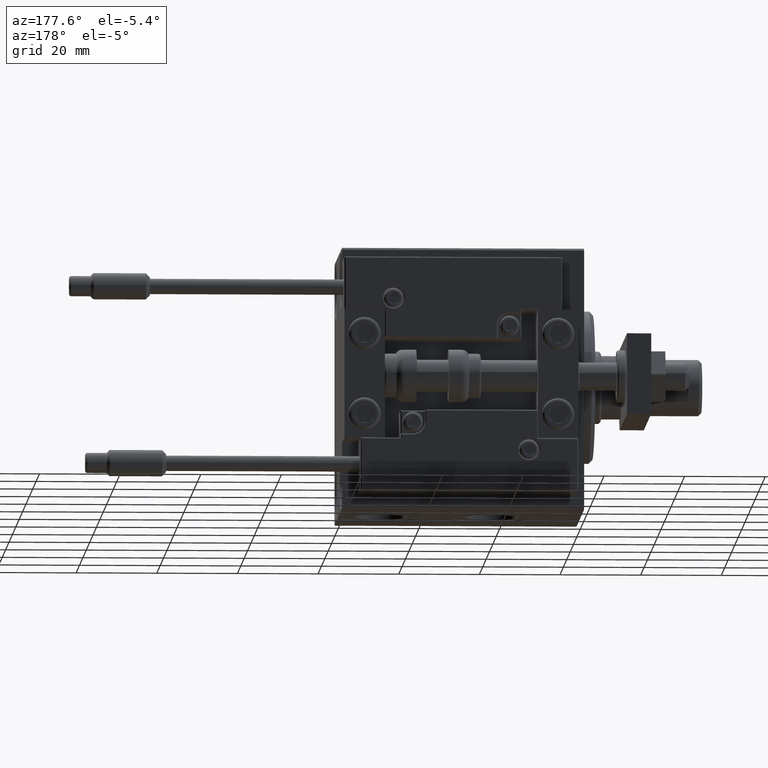
[diagram: clean part render]
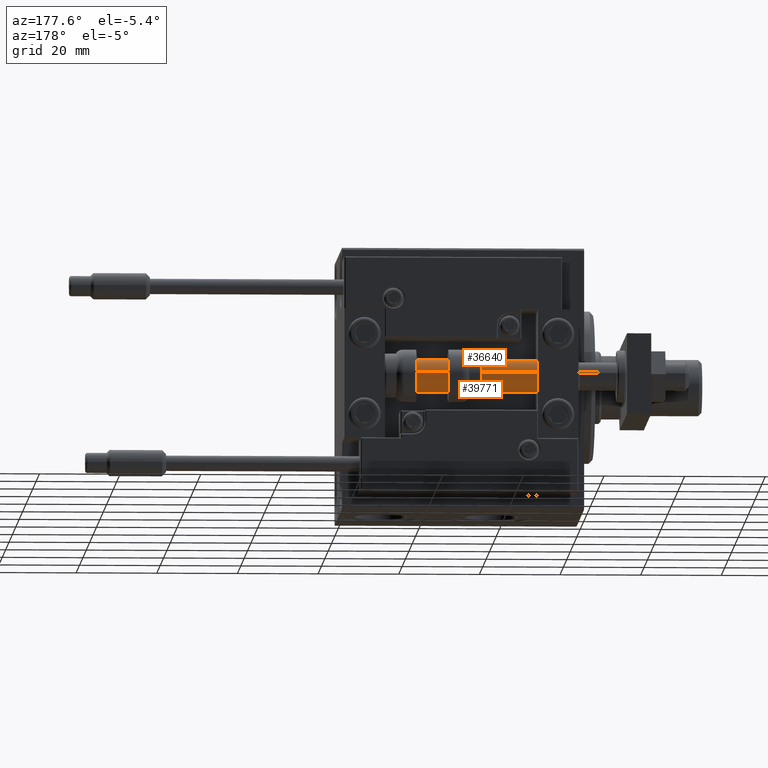
[diagram: same view with one multi-face feature highlighted, each face labeled with its STEP entity id]
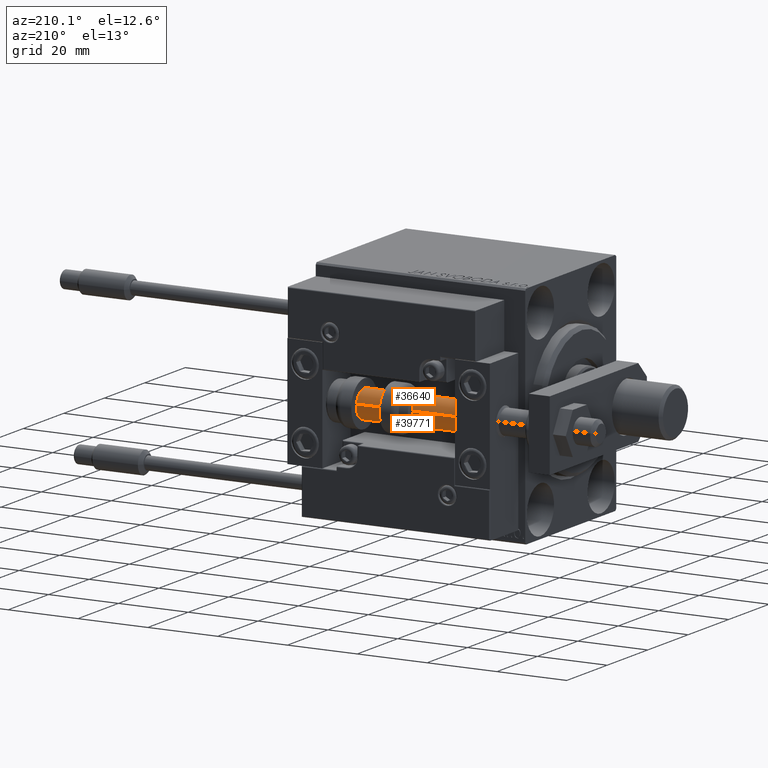
[diagram: same view with one multi-face feature highlighted, each face labeled with its STEP entity id]
A machine part, auxiliary view. The highlighted faces form ONE feature: a constant-radius fillet chain: 2 tangent blend faces with common blend radius 4 mm. The faces share edges in the B-rep.
A second angle (auxiliary view) of the same feature is appended — it is thin or edge-on in the first view.
Their STEP definitions:
[1] entity #39771 (Cylinder):
#1203 = VERTEX_POINT ( 'NONE', #42633 ) ;
#1459 = DIRECTION ( 'NONE',  ( -0.000000000000000000, -0.000000000000000000, -1.000000000000000000 ) ) ;
#2804 = CARTESIAN_POINT ( 'NONE',  ( -4.000000000000000000, 0.000000000000000000, 60.00000000000000000 ) ) ;
#3337 = CARTESIAN_POINT ( 'NONE',  ( 0.000000000000000000, 0.000000000000000000, 2.000000000000036415 ) ) ;
#3891 = DIRECTION ( 'NONE',  ( -0.000000000000000000, -0.000000000000000000, -1.000000000000000000 ) ) ;
#4437 = DIRECTION ( 'NONE',  ( 1.000000000000000000, 0.000000000000000000, 0.000000000000000000 ) ) ;
#5249 = VECTOR ( 'NONE', #48591, 1000.000000000000000 ) ;
#5501 = CARTESIAN_POINT ( 'NONE',  ( 4.000000000000000000, 4.898587196589412829E-16, 2.000000000000036415 ) ) ;
#5784 = AXIS2_PLACEMENT_3D ( 'NONE', #24080, #39842, #4437 ) ;
#6032 = CIRCLE ( 'NONE', #46455, 4.000000000000000000 ) ;
#6418 = ORIENTED_EDGE ( 'NONE', *, *, #44664, .T. ) ;
#6712 = DIRECTION ( 'NONE',  ( -0.000000000000000000, -0.000000000000000000, 1.000000000000000000 ) ) ;
#7205 = ORIENTED_EDGE ( 'NONE', *, *, #8589, .F. ) ;
#7781 = VECTOR ( 'NONE', #1459, 1000.000000000000000 ) ;
#8306 = CARTESIAN_POINT ( 'NONE',  ( -4.000000000000000000, 0.000000000000000000, 60.00000000000000000 ) ) ;
#8589 = EDGE_CURVE ( 'NONE', #1203, #37709, #40751, .T. ) ;
#9495 = EDGE_LOOP ( 'NONE', ( #7205, #31178, #18586, #6418 ) ) ;
#12151 = FACE_OUTER_BOUND ( 'NONE', #9495, .T. ) ;
#12559 = AXIS2_PLACEMENT_3D ( 'NONE', #27667, #3891, #16284 ) ;
#16284 = DIRECTION ( 'NONE',  ( -1.000000000000000000, 0.000000000000000000, 0.000000000000000000 ) ) ;
#18586 = ORIENTED_EDGE ( 'NONE', *, *, #45723, .T. ) ;
#20595 = CARTESIAN_POINT ( 'NONE',  ( -4.000000000000000000, 0.000000000000000000, 2.000000000000036415 ) ) ;
#22465 = DIRECTION ( 'NONE',  ( 1.000000000000000000, 0.000000000000000000, 0.000000000000000000 ) ) ;
#23780 = EDGE_CURVE ( 'NONE', #31497, #1203, #45392, .T. ) ;
#24080 = CARTESIAN_POINT ( 'NONE',  ( 0.000000000000000000, 0.000000000000000000, 60.00000000000000000 ) ) ;
#27667 = CARTESIAN_POINT ( 'NONE',  ( 0.000000000000000000, 0.000000000000000000, 60.00000000000000000 ) ) ;
#31178 = ORIENTED_EDGE ( 'NONE', *, *, #23780, .F. ) ;
#31497 = VERTEX_POINT ( 'NONE', #2804 ) ;
#32302 = CYLINDRICAL_SURFACE ( 'NONE', #12559, 4.000000000000000000 ) ;
#36862 = CARTESIAN_POINT ( 'NONE',  ( 4.000000000000000000, 4.898587196589412829E-16, 60.00000000000000000 ) ) ;
#37709 = VERTEX_POINT ( 'NONE', #5501 ) ;
#39771 = ADVANCED_FACE ( 'NONE', ( #12151 ), #32302, .T. ) ;
#39842 = DIRECTION ( 'NONE',  ( 0.000000000000000000, 0.000000000000000000, 1.000000000000000000 ) ) ;
#40345 = LINE ( 'NONE', #8306, #5249 ) ;
#40751 = LINE ( 'NONE', #36862, #7781 ) ;
#42633 = CARTESIAN_POINT ( 'NONE',  ( 4.000000000000000000, 4.898587196589412829E-16, 60.00000000000000000 ) ) ;
#44664 = EDGE_CURVE ( 'NONE', #47274, #37709, #6032, .T. ) ;
#45392 = CIRCLE ( 'NONE', #5784, 4.000000000000000000 ) ;
#45723 = EDGE_CURVE ( 'NONE', #31497, #47274, #40345, .T. ) ;
#46455 = AXIS2_PLACEMENT_3D ( 'NONE', #3337, #6712, #22465 ) ;
#47274 = VERTEX_POINT ( 'NONE', #20595 ) ;
#48591 = DIRECTION ( 'NONE',  ( -0.000000000000000000, -0.000000000000000000, -1.000000000000000000 ) ) ;
[2] entity #36640 (Cylinder):
#1203 = VERTEX_POINT ( 'NONE', #42633 ) ;
#1459 = DIRECTION ( 'NONE',  ( -0.000000000000000000, -0.000000000000000000, -1.000000000000000000 ) ) ;
#1619 = FACE_OUTER_BOUND ( 'NONE', #50035, .T. ) ;
#2804 = CARTESIAN_POINT ( 'NONE',  ( -4.000000000000000000, 0.000000000000000000, 60.00000000000000000 ) ) ;
#5249 = VECTOR ( 'NONE', #48591, 1000.000000000000000 ) ;
#5501 = CARTESIAN_POINT ( 'NONE',  ( 4.000000000000000000, 4.898587196589412829E-16, 2.000000000000036415 ) ) ;
#7781 = VECTOR ( 'NONE', #1459, 1000.000000000000000 ) ;
#8306 = CARTESIAN_POINT ( 'NONE',  ( -4.000000000000000000, 0.000000000000000000, 60.00000000000000000 ) ) ;
#8589 = EDGE_CURVE ( 'NONE', #1203, #37709, #40751, .T. ) ;
#15710 = ORIENTED_EDGE ( 'NONE', *, *, #20883, .F. ) ;
#18246 = AXIS2_PLACEMENT_3D ( 'NONE', #23096, #46860, #31103 ) ;
#20403 = DIRECTION ( 'NONE',  ( 1.000000000000000000, 0.000000000000000000, 0.000000000000000000 ) ) ;
#20595 = CARTESIAN_POINT ( 'NONE',  ( -4.000000000000000000, 0.000000000000000000, 2.000000000000036415 ) ) ;
#20645 = ORIENTED_EDGE ( 'NONE', *, *, #36521, .T. ) ;
#20883 = EDGE_CURVE ( 'NONE', #1203, #31497, #32808, .T. ) ;
#21254 = CARTESIAN_POINT ( 'NONE',  ( 0.000000000000000000, 0.000000000000000000, 60.00000000000000000 ) ) ;
#23096 = CARTESIAN_POINT ( 'NONE',  ( 0.000000000000000000, 0.000000000000000000, 2.000000000000036415 ) ) ;
#24629 = DIRECTION ( 'NONE',  ( -1.000000000000000000, 0.000000000000000000, 0.000000000000000000 ) ) ;
#31103 = DIRECTION ( 'NONE',  ( 1.000000000000000000, 0.000000000000000000, 0.000000000000000000 ) ) ;
#31442 = AXIS2_PLACEMENT_3D ( 'NONE', #21254, #32374, #24629 ) ;
#31497 = VERTEX_POINT ( 'NONE', #2804 ) ;
#32374 = DIRECTION ( 'NONE',  ( -0.000000000000000000, -0.000000000000000000, -1.000000000000000000 ) ) ;
#32808 = CIRCLE ( 'NONE', #41885, 4.000000000000000000 ) ;
#34621 = ORIENTED_EDGE ( 'NONE', *, *, #8589, .T. ) ;
#36521 = EDGE_CURVE ( 'NONE', #37709, #47274, #44647, .T. ) ;
#36640 = ADVANCED_FACE ( 'NONE', ( #1619 ), #44266, .T. ) ;
#36862 = CARTESIAN_POINT ( 'NONE',  ( 4.000000000000000000, 4.898587196589412829E-16, 60.00000000000000000 ) ) ;
#37709 = VERTEX_POINT ( 'NONE', #5501 ) ;
#39237 = ORIENTED_EDGE ( 'NONE', *, *, #45723, .F. ) ;
#40345 = LINE ( 'NONE', #8306, #5249 ) ;
#40751 = LINE ( 'NONE', #36862, #7781 ) ;
#41885 = AXIS2_PLACEMENT_3D ( 'NONE', #48033, #48300, #20403 ) ;
#42633 = CARTESIAN_POINT ( 'NONE',  ( 4.000000000000000000, 4.898587196589412829E-16, 60.00000000000000000 ) ) ;
#44266 = CYLINDRICAL_SURFACE ( 'NONE', #31442, 4.000000000000000000 ) ;
#44647 = CIRCLE ( 'NONE', #18246, 4.000000000000000000 ) ;
#45723 = EDGE_CURVE ( 'NONE', #31497, #47274, #40345, .T. ) ;
#46860 = DIRECTION ( 'NONE',  ( -0.000000000000000000, -0.000000000000000000, 1.000000000000000000 ) ) ;
#47274 = VERTEX_POINT ( 'NONE', #20595 ) ;
#48033 = CARTESIAN_POINT ( 'NONE',  ( 0.000000000000000000, 0.000000000000000000, 60.00000000000000000 ) ) ;
#48300 = DIRECTION ( 'NONE',  ( 0.000000000000000000, 0.000000000000000000, 1.000000000000000000 ) ) ;
#48591 = DIRECTION ( 'NONE',  ( -0.000000000000000000, -0.000000000000000000, -1.000000000000000000 ) ) ;
#50035 = EDGE_LOOP ( 'NONE', ( #15710, #34621, #20645, #39237 ) ) ;